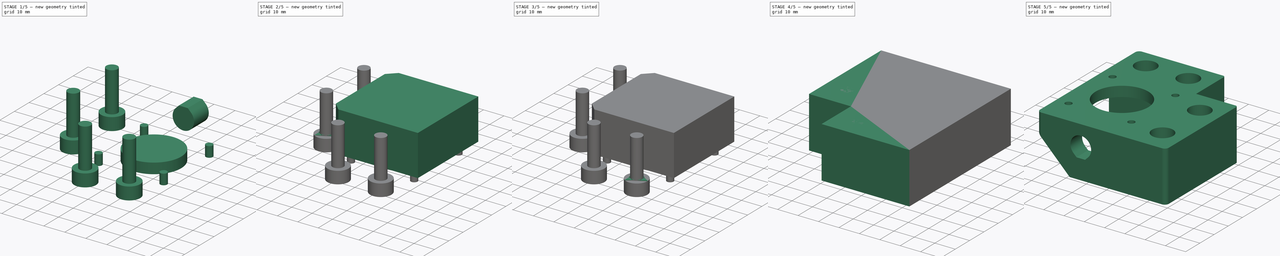
[diagram: build sequence overview — one tinted view per stage of 5, left to right]
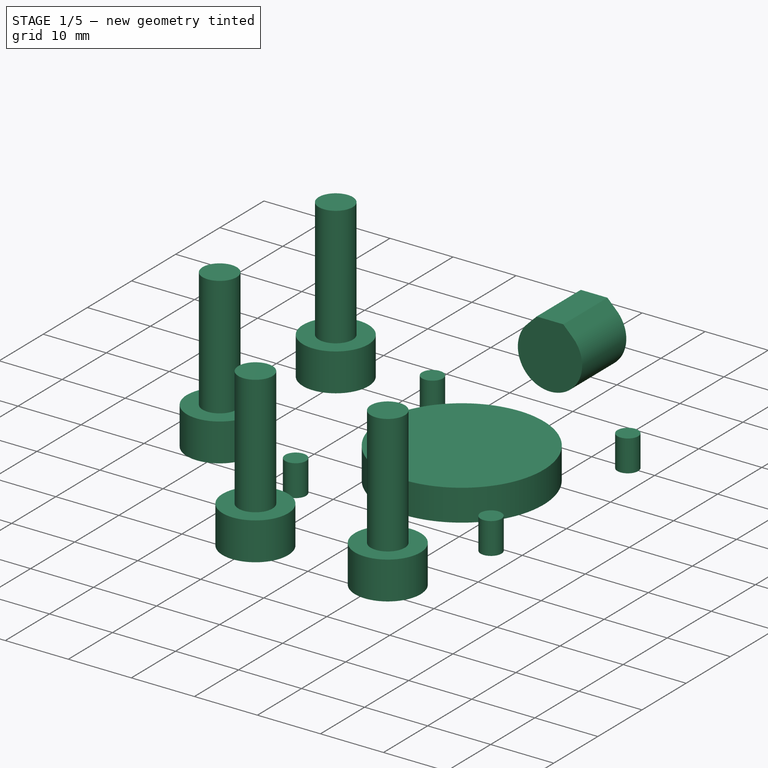
[diagram: stage 1 of 5 — iso view after this stage's code; geometry added in this stage tinted green]
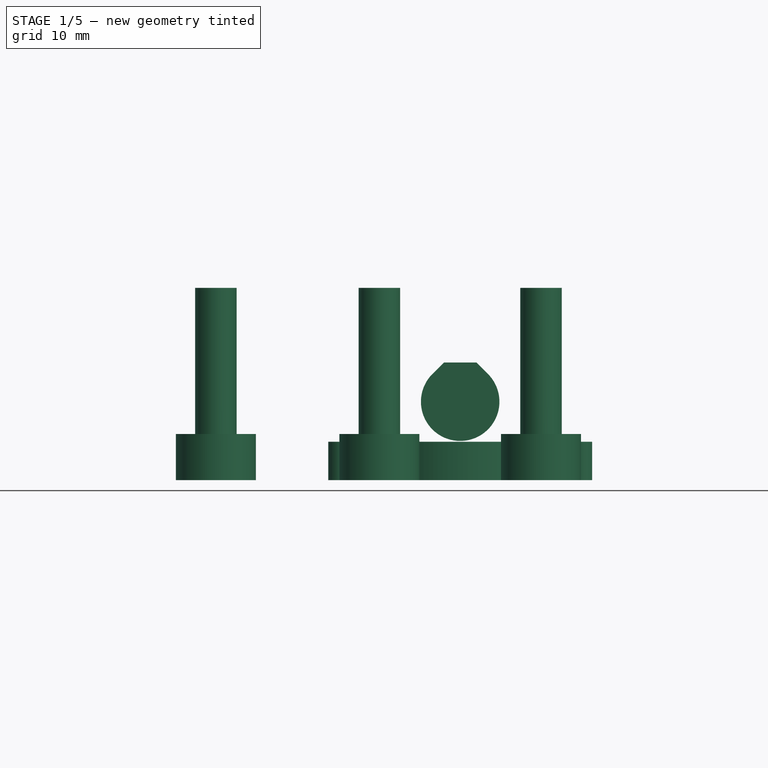
[diagram: stage 1 of 5 — front view after this stage's code; geometry added in this stage tinted green]
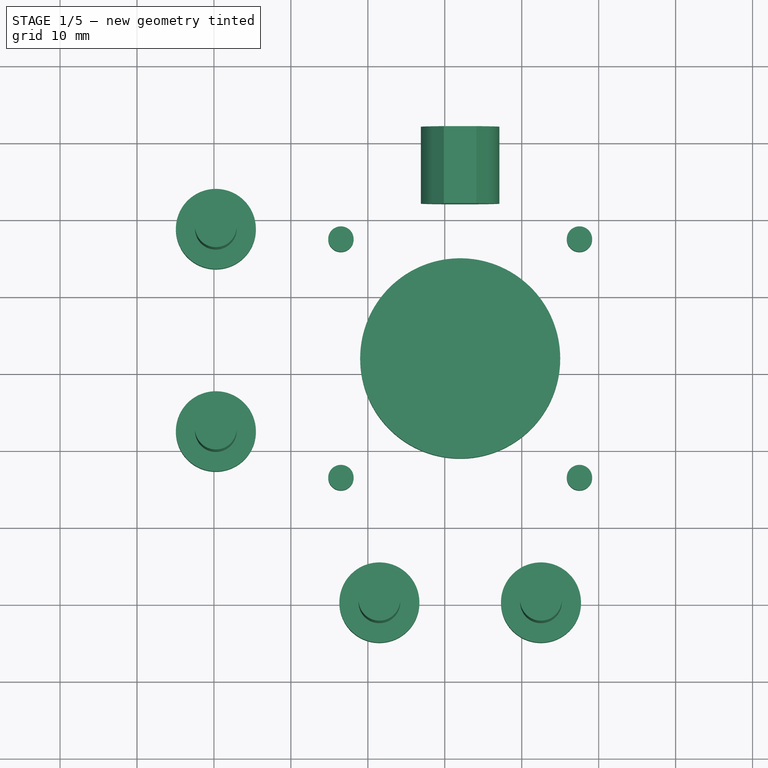
[diagram: stage 1 of 5 — top view after this stage's code; geometry added in this stage tinted green]
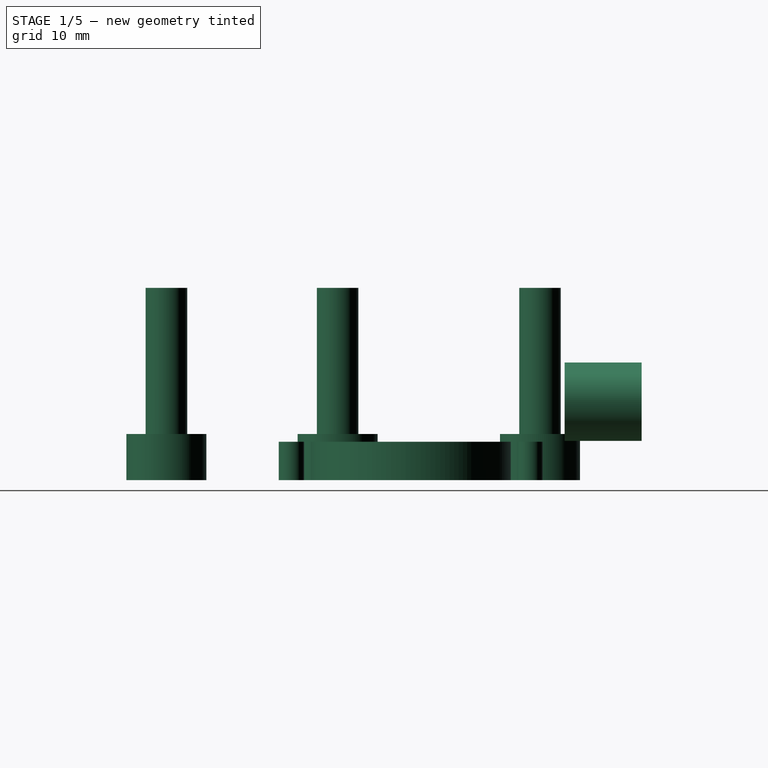
[diagram: stage 1 of 5 — right view after this stage's code; geometry added in this stage tinted green]
FCSTD DOCUMENT  (FreeCAD 0.17R13541 (Git))
Label: Motor XY_Der
License: All rights reserved
LicenseURL: http://en.wikipedia.org/wiki/All_rights_reserved
objects: Part::MultiFuse×5, Sketcher::SketchObject×4, Part::Extrusion×4, Part::Box×3, Part::Cut×3, Part::FeaturePython×3, Part::Chamfer×2, Part::Prism×2, Part::Fillet×1, Part::Mirroring×1
note: 28 computed .brp shape members not serialized (recipe doc carries the construction recipe); baked Part::Feature solids carry a one-line shape summary decoded from their .brp

FEATURE [Part::Box] Box010  label="hueco_motor001"
  AttacherType = Attacher::AttachEngine3D
  Height = 20
  Length = 43
  Placement = pos=(20.5,20.5,5) rot=(0,0,1;0rad)
  Width = 42.3
FEATURE [Sketcher::SketchObject] Sketch007
  MapMode = 5
  Placement = pos=(20.5,20.5,25) rot=(0,0,1;0rad)
  Support = -> [Box010]
  sketch-geometry (5):
    g0: Circle CenterX=21.5 CenterY=21.5 CenterZ=0 NormalX=0 NormalY=0 NormalZ=1 AngleXU=0 Radius=13
    g1: Circle CenterX=6 CenterY=37 CenterZ=0 NormalX=0 NormalY=0 NormalZ=1 AngleXU=0 Radius=1.65
    g2: Circle CenterX=37 CenterY=37 CenterZ=0 NormalX=0 NormalY=0 NormalZ=1 AngleXU=0 Radius=1.65
    g3: Circle CenterX=37 CenterY=6 CenterZ=0 NormalX=0 NormalY=0 NormalZ=1 AngleXU=0 Radius=1.65
    g4: Circle CenterX=6 CenterY=6 CenterZ=0 NormalX=0 NormalY=0 NormalZ=1 AngleXU=0 Radius=1.65
  constraints (15):
    c: DistanceY(g-1,g0) = 21.5
    c: DistanceX(g-1,g0) = 21.5
    c: Radius(g0) = 13
    c: DistanceX(g1,g0) = 15.5
    c: Radius(g1) = 1.65
    c: DistanceY(g2,g1) = 0
    c: DistanceY(g1,g0) = -15.5
    c: Equal(g2,g1)
    c: DistanceX(g2,g0) = -15.5
    c: DistanceX(g3,g2) = 0
    c: DistanceX(g4,g1) = 0
    c: DistanceY(g4,g3) = 0
    c: DistanceY(g3,g0) = 15.5
    c: Equal(g3,g2)
    c: Equal(g4,g3)
FEATURE [Sketcher::SketchObject] Sketch009  label="huecos_tornillos001"
  MapMode = 5
  sketch-geometry (4):
    g0: Circle CenterX=31.5 CenterY=10.25 CenterZ=0 NormalX=0 NormalY=0 NormalZ=1 AngleXU=0 Radius=2.7
    g1: Circle CenterX=52.5 CenterY=10.25 CenterZ=0 NormalX=0 NormalY=0 NormalZ=1 AngleXU=0 Radius=2.7
    g2: Circle CenterX=10.25 CenterY=32.5 CenterZ=0 NormalX=0 NormalY=0 NormalZ=1 AngleXU=0 Radius=2.7
    g3: Circle CenterX=10.25 CenterY=58.8 CenterZ=0 NormalX=0 NormalY=0 NormalZ=1 AngleXU=0 Radius=2.7
  constraints (12):
    c: DistanceY(g-1,g0) = 10.25
    c: Radius(g0) = 2.7
    c: DistanceX(g-1,g0) = 31.5
    c: DistanceY(g1,g0) = 0
    c: DistanceX(g1,g0) = -21
    c: Equal(g1,g0)
    c: DistanceX(g-1,g2) = 10.25
    c: Equal(g2,g0)
    c: DistanceY(g-1,g2) = 32.5
    c: DistanceX(g3,g2) = 0
    c: DistanceY(g3,g2) = -26.3
    c: Equal(g3,g2)
FEATURE [Sketcher::SketchObject] Sketch010  label="M10_repraphole001"
  MapMode = 5
  Placement = pos=(0,0,0) rot=(0.57735,0.57735,0.57735;2.0944rad)
  sketch-geometry (4):
    g0: ArcOfCircle CenterX=0 CenterY=0 CenterZ=0 NormalX=0 NormalY=0 NormalZ=1 AngleXU=0 Radius=5.1 StartAngle=2.3562 EndAngle=7.06858
    g1: LineSegment StartX=-3.60626 StartY=3.60623 StartZ=0 EndX=-2.11249 EndY=5.1 EndZ=0
    g2: LineSegment StartX=2.11249 StartY=5.1 StartZ=0 EndX=3.60626 EndY=3.60623 EndZ=0
    g3: LineSegment StartX=-2.11249 StartY=5.1 StartZ=0 EndX=2.11249 EndY=5.1 EndZ=0
  constraints (12):
    c: Coincident(g0,g-1)
    c: Radius(g0) = 5.1  'M5'
    c: Angle(g-1,g1) = 0.785398
    c: Horizontal(g3)
    c: Coincident(g3,g1)
    c: Coincident(g3,g2)
    c: Coincident(g0,g1)
    c: Coincident(g0,g2)
    c: DistanceY(g-1,g1) = 5.1  'M5radio'
    c: Angle(g2,g-1) = 0.785398
    c: Tangent(g2,g0)
    c: Tangent(g1,g0)
FEATURE [Sketcher::SketchObject] Sketch008  label="huecos_cabeza_tornillos001"
  MapMode = 5
  sketch-geometry (4):
    g0: Circle CenterX=31.5 CenterY=10.25 CenterZ=0 NormalX=0 NormalY=0 NormalZ=1 AngleXU=0 Radius=5.2
    g1: Circle CenterX=52.5 CenterY=10.25 CenterZ=0 NormalX=0 NormalY=0 NormalZ=1 AngleXU=0 Radius=5.2
    g2: Circle CenterX=10.25 CenterY=32.5 CenterZ=0 NormalX=0 NormalY=0 NormalZ=1 AngleXU=0 Radius=5.2
    g3: Circle CenterX=10.25 CenterY=58.8 CenterZ=0 NormalX=0 NormalY=0 NormalZ=1 AngleXU=0 Radius=5.2
  constraints (12):
    c: DistanceY(g-1,g0) = 10.25
    c: Radius(g0) = 5.2
    c: DistanceX(g-1,g0) = 31.5
    c: DistanceY(g1,g0) = 0
    c: DistanceX(g1,g0) = -21
    c: Equal(g1,g0)
    c: DistanceX(g-1,g2) = 10.25
    c: Equal(g2,g0)
    c: DistanceY(g-1,g2) = 32.5
    c: DistanceX(g3,g2) = 0
    c: DistanceY(g3,g2) = -26.3
    c: Equal(g3,g2)
FEATURE [Part::Extrusion] Extrude009  label="huecos_cabeza_tornillos_extr001"
  Base = -> Sketch008
  Dir = (0,0,6)
  DirMode = 0
  FaceMakerClass = Part::FaceMakerExtrusion
  LengthFwd = 0
  LengthRev = 0
  Solid = true
  Symmetric = false
FEATURE [Part::Extrusion] Extrude010  label="huecos_tornillos_extr001"
  Base = -> Sketch009
  Dir = (0,0,25)
  DirMode = 0
  FaceMakerClass = Part::FaceMakerExtrusion
  LengthFwd = 0
  LengthRev = 0
  Solid = true
  Symmetric = false
FEATURE [Part::Extrusion] Extrude008  label="M10_repraphole_extr001"
  Base = -> Sketch010
  Dir = (10,0,0)
  DirMode = 0
  FaceMakerClass = Part::FaceMakerExtrusion
  LengthFwd = 0
  LengthRev = 0
  Placement = pos=(42,62,10.2) rot=(0,0,1;1.5708rad)
  Solid = true
  Symmetric = false
FEATURE [Part::Extrusion] Extrude007  label="agujero_motor001"
  Base = -> Sketch007
  Dir = (0,0,5)
  DirMode = 0
  FaceMakerClass = Part::FaceMakerExtrusion
  LengthFwd = 0
  LengthRev = 0
  Placement = pos=(0,0,-25) rot=(0,0,1;0rad)
  Solid = true
  Symmetric = false
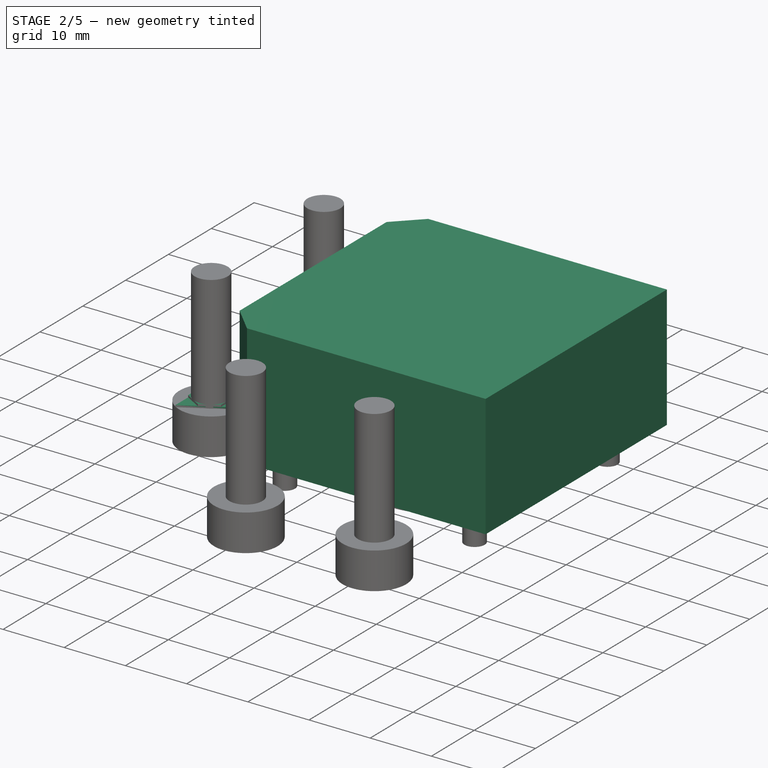
[diagram: stage 2 of 5 — iso view after this stage's code; geometry added in this stage tinted green]
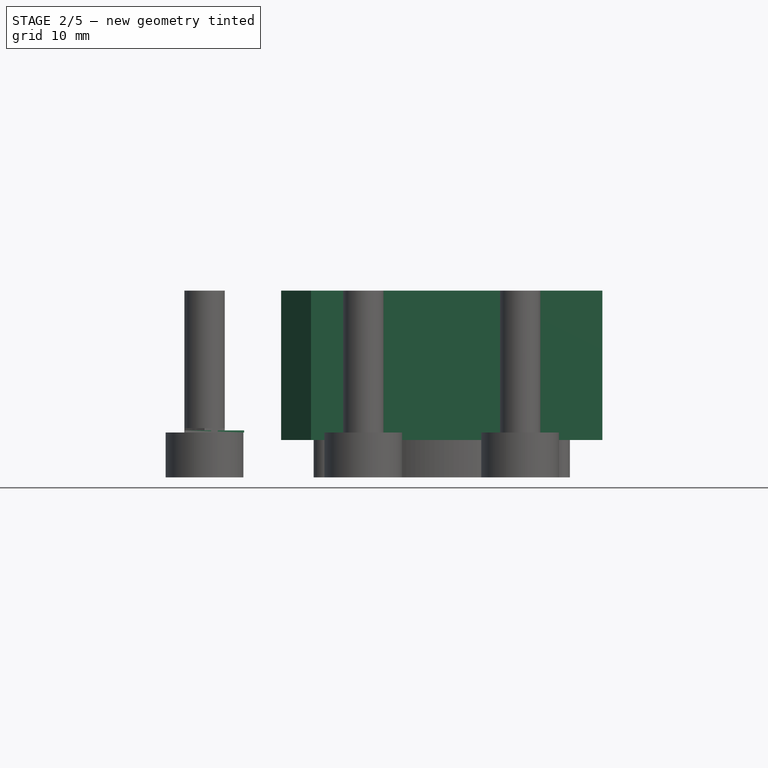
[diagram: stage 2 of 5 — front view after this stage's code; geometry added in this stage tinted green]
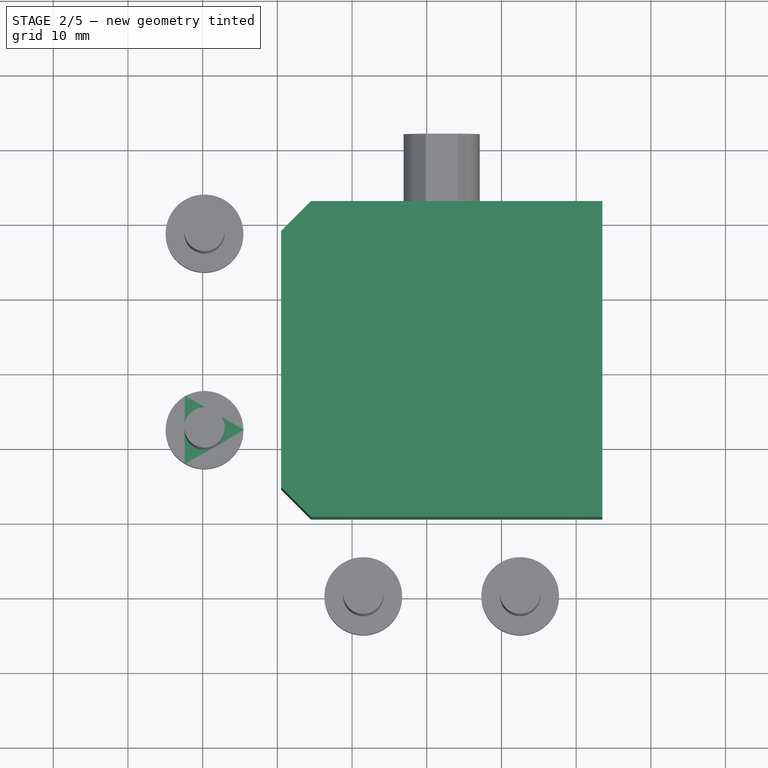
[diagram: stage 2 of 5 — top view after this stage's code; geometry added in this stage tinted green]
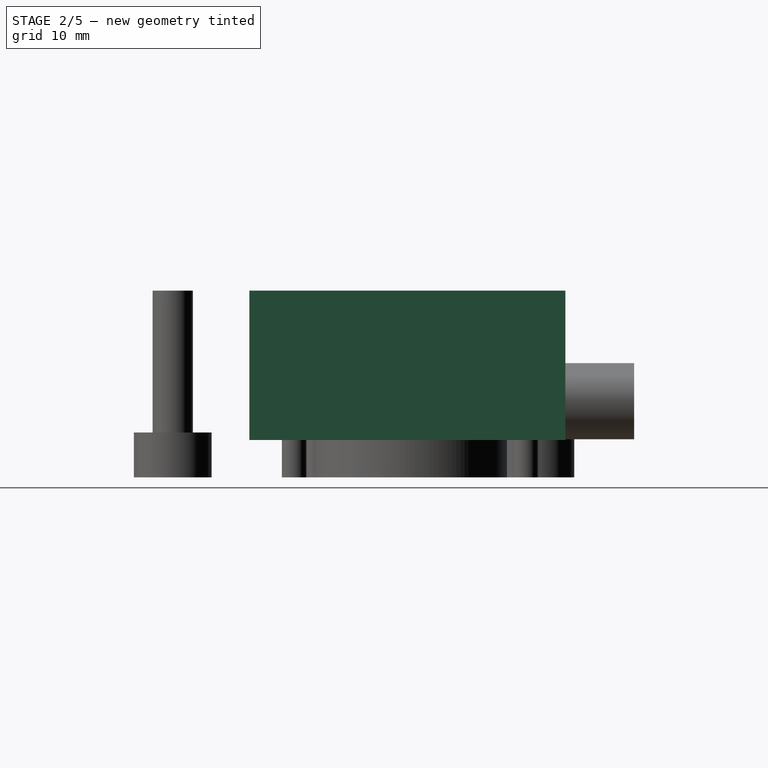
[diagram: stage 2 of 5 — right view after this stage's code; geometry added in this stage tinted green]
FEATURE [Part::Chamfer] Chamfer003  label="hueco_motor_chaflan001"
  Base = -> Box010
  Edges = 2 edges r=4: [Edge1,Edge3]
FEATURE [Part::Prism] Prism002  label="triangulo_soporte001"
  AttacherType = Attacher::AttachEngine3D
  Circumradius = 5.3
  Height = 0.3
  Placement = pos=(10.25,32.5,6) rot=(0,0,1;0rad)
  Polygon = 3
FEATURE [Part::Prism] Prism003  label="hexagono_soporte001"
  AttacherType = Attacher::AttachEngine3D
  Circumradius = 3.1
  Height = 0.3
  Placement = pos=(10.25,32.5,6.3) rot=(0,0,1;0.523599rad)
  Polygon = 6
FEATURE [Part::MultiFuse] Fusion015  label="huecos_tornillos_todo001"
  Shapes = -> [Extrude009,Extrude010]
FEATURE [Part::MultiFuse] Fusion011  label="hueco_motor_total001"
  Shapes = -> [Chamfer003,Extrude007]
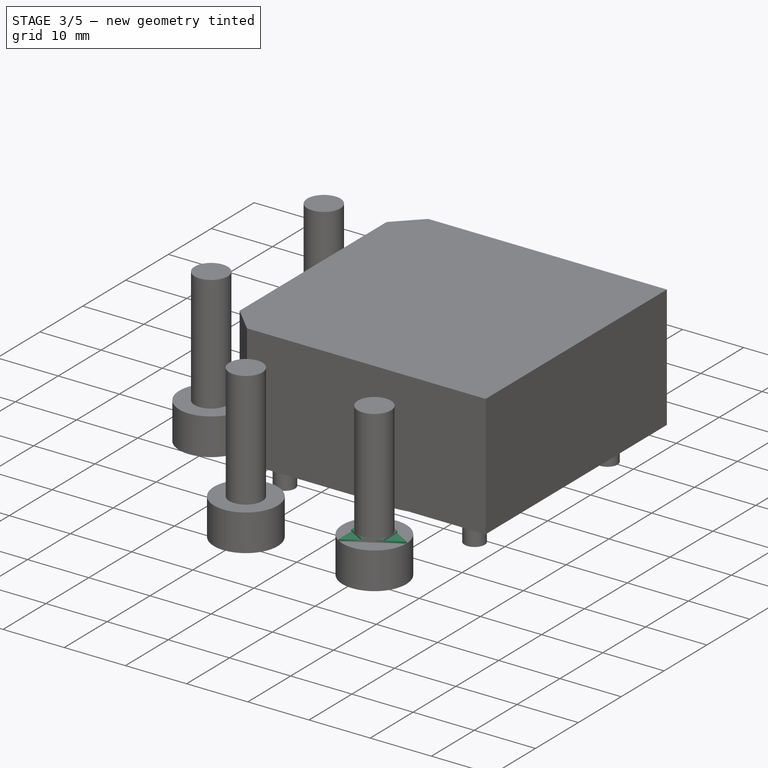
[diagram: stage 3 of 5 — iso view after this stage's code; geometry added in this stage tinted green]
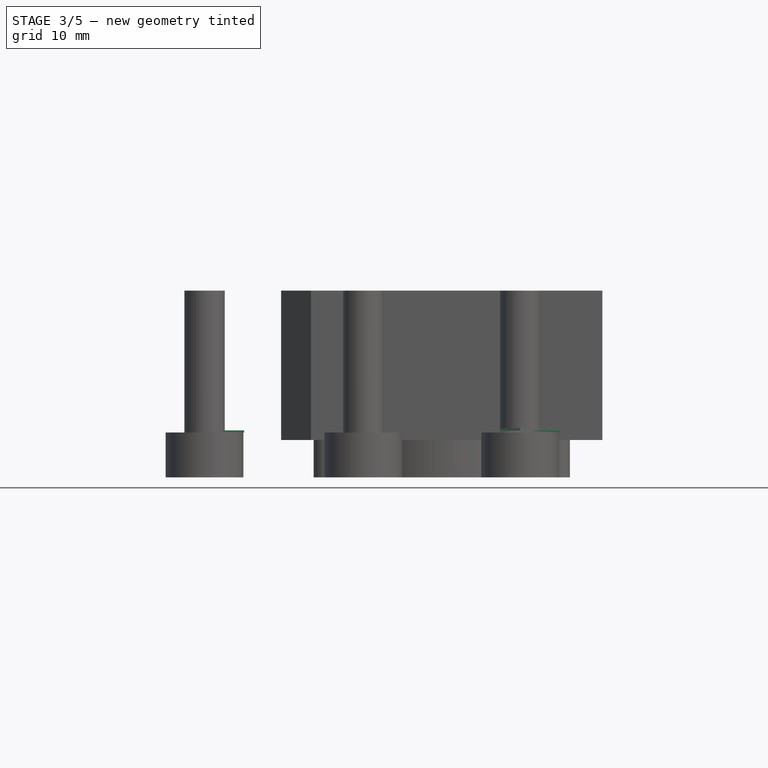
[diagram: stage 3 of 5 — front view after this stage's code; geometry added in this stage tinted green]
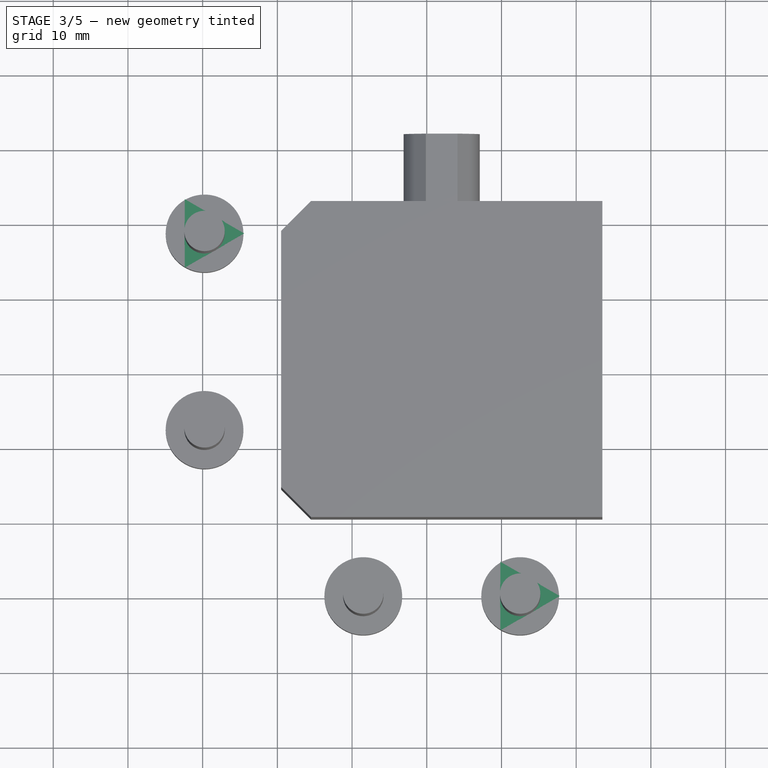
[diagram: stage 3 of 5 — top view after this stage's code; geometry added in this stage tinted green]
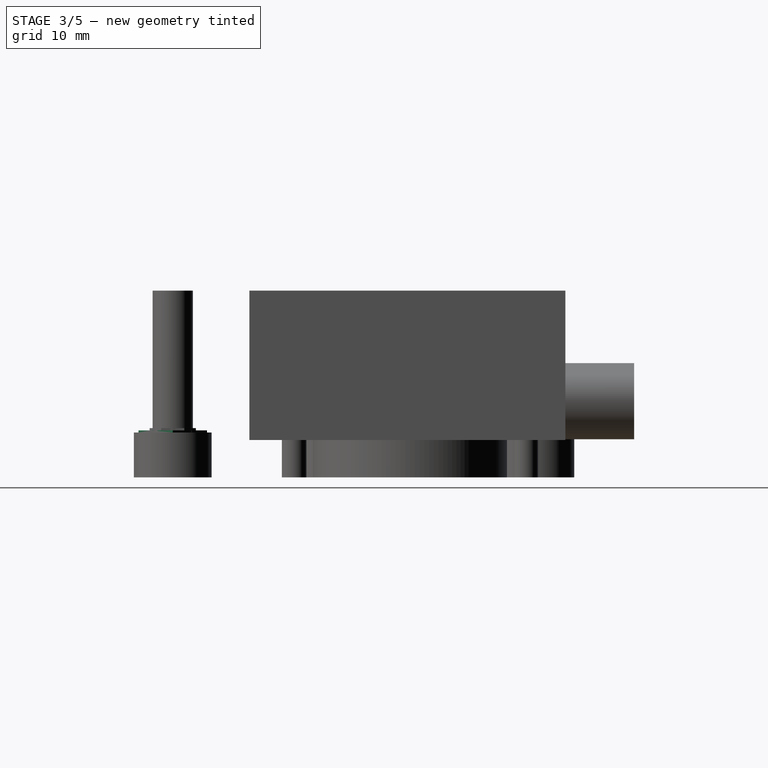
[diagram: stage 3 of 5 — right view after this stage's code; geometry added in this stage tinted green]
FEATURE [Part::MultiFuse] Fusion012  label="soporte_circulos001"
  Shapes = -> [Prism002,Prism003]
FEATURE [Part::FeaturePython] Clone008  label="soporte_circulos_005"  # Draft clone (typed FeaturePython)
  Objects = -> [Fusion012]
  Placement = pos=(21.25,-22.25,0) rot=(0,0,1;0rad)
  Scale = (1,1,1)
FEATURE [Part::FeaturePython] Clone010  label="soporte_circulos_007"  # Draft clone (typed FeaturePython)
  Objects = -> [Clone008]
  Placement = pos=(42.25,-22.25,0) rot=(0,0,1;0rad)
  Scale = (1,1,1)
FEATURE [Part::FeaturePython] Clone009  label="soporte_circulos_006"  # Draft clone (typed FeaturePython)
  Objects = -> [Fusion012]
  Placement = pos=(0,26.3,0) rot=(0,0,1;0rad)
  Scale = (1,1,1)
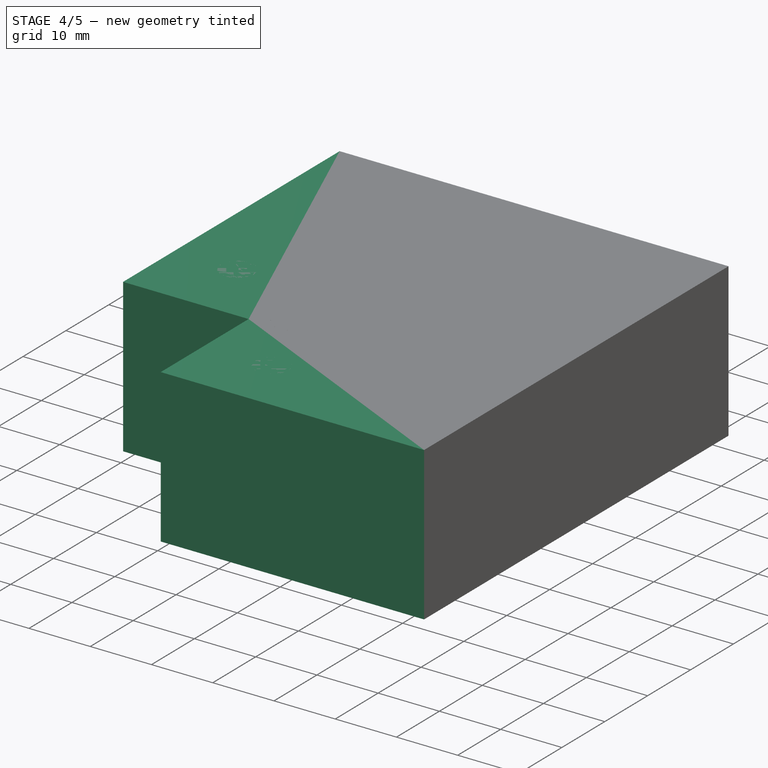
[diagram: stage 4 of 5 — iso view after this stage's code; geometry added in this stage tinted green]
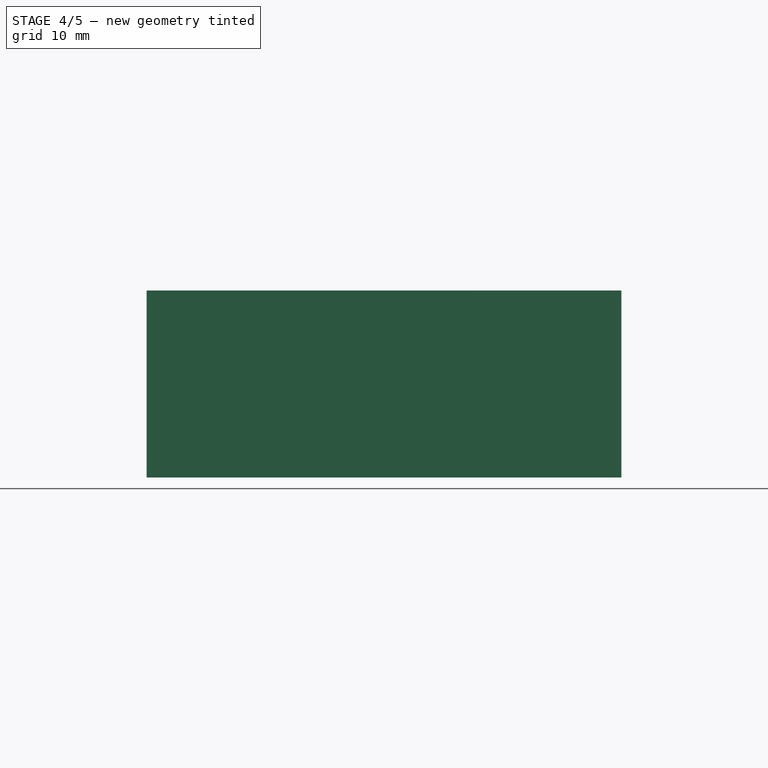
[diagram: stage 4 of 5 — front view after this stage's code; geometry added in this stage tinted green]
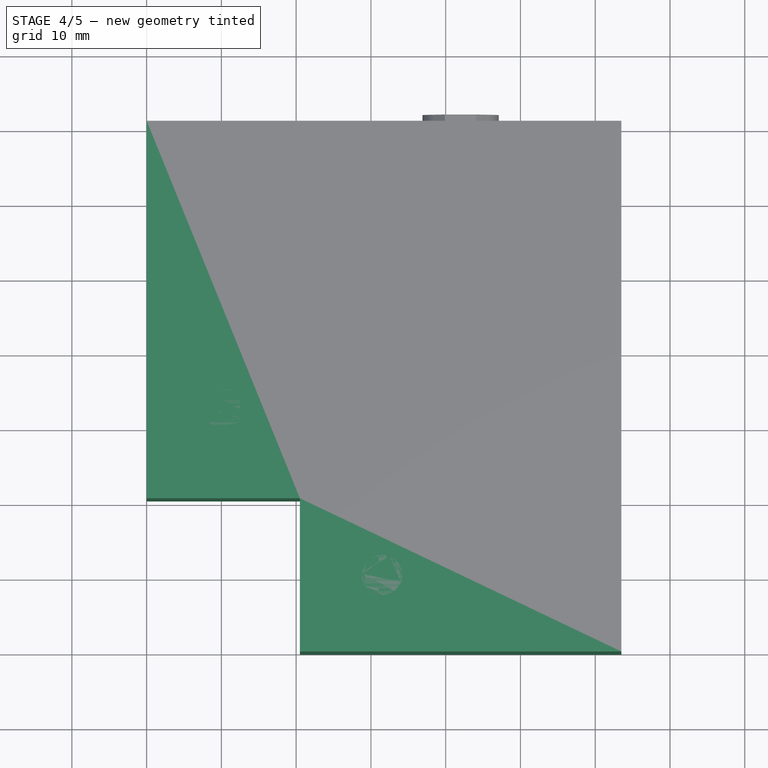
[diagram: stage 4 of 5 — top view after this stage's code; geometry added in this stage tinted green]
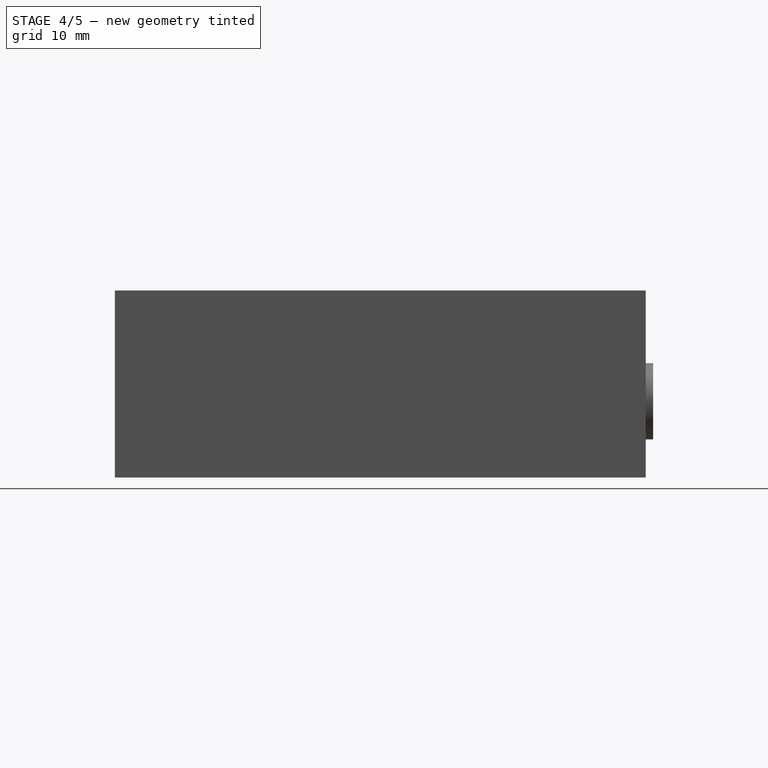
[diagram: stage 4 of 5 — right view after this stage's code; geometry added in this stage tinted green]
FEATURE [Part::Box] Box011  label="hueco_columna_z001"
  AttacherType = Attacher::AttachEngine3D
  Height = 25
  Length = 20.5
  Width = 20.5
FEATURE [Part::Box] Box012  label="cubo_base001"
  AttacherType = Attacher::AttachEngine3D
  Height = 25
  Length = 63.5
  Width = 71
FEATURE [Part::Cut] Cut008  label="cubo_base_sin_columna001"
  Base = -> Box012
  Tool = -> Box011
FEATURE [Part::MultiFuse] Fusion013  label="huecos_soporte_taladros001"
  Shapes = -> [Fusion012,Clone009,Clone008,Clone010]
FEATURE [Part::MultiFuse] Fusion014  label="huecos_003"
  Shapes = -> [Fusion015,Extrude008,Fusion013]
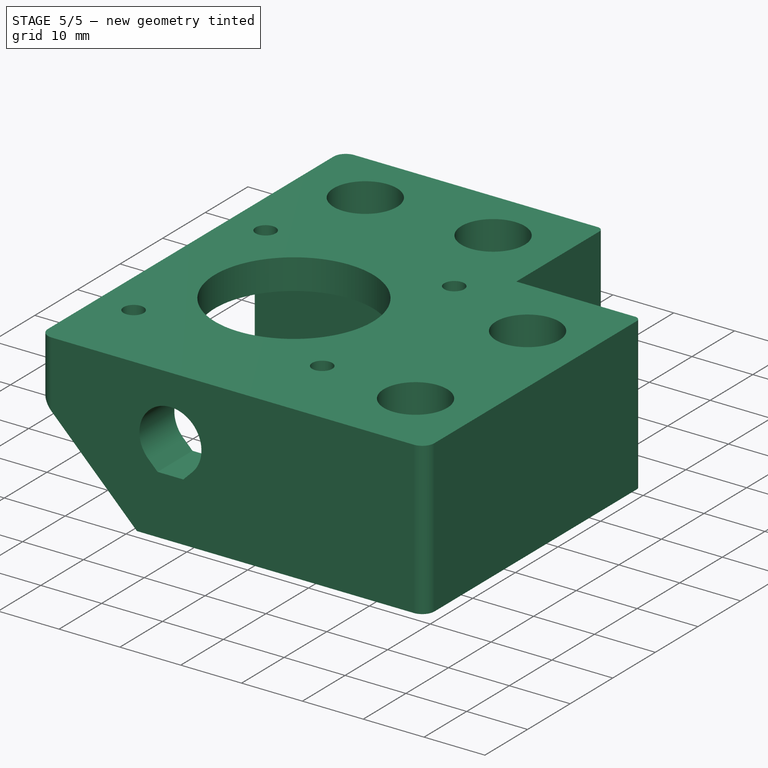
[diagram: stage 5 of 5 — iso view after this stage's code; geometry added in this stage tinted green]
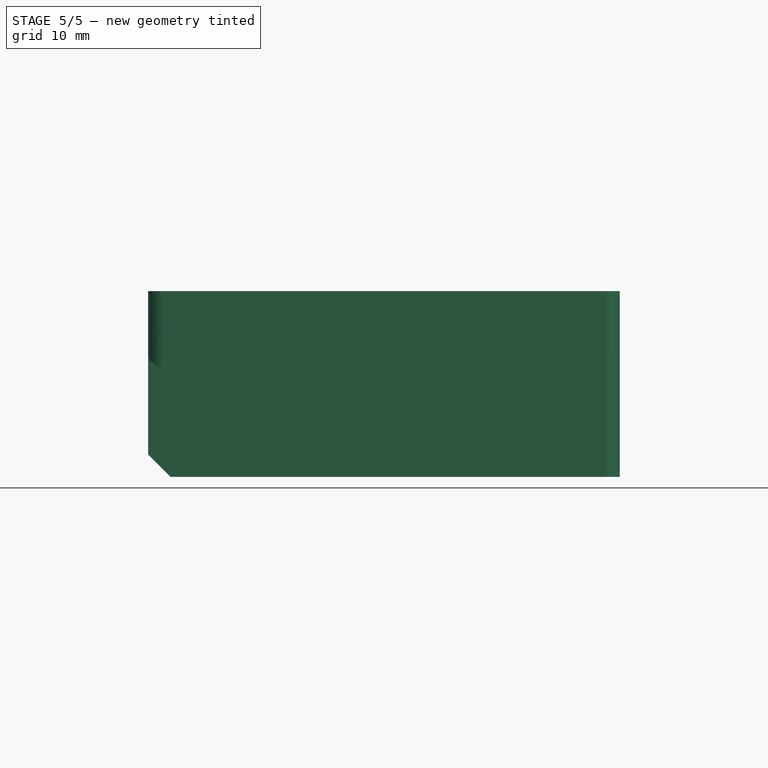
[diagram: stage 5 of 5 — front view after this stage's code; geometry added in this stage tinted green]
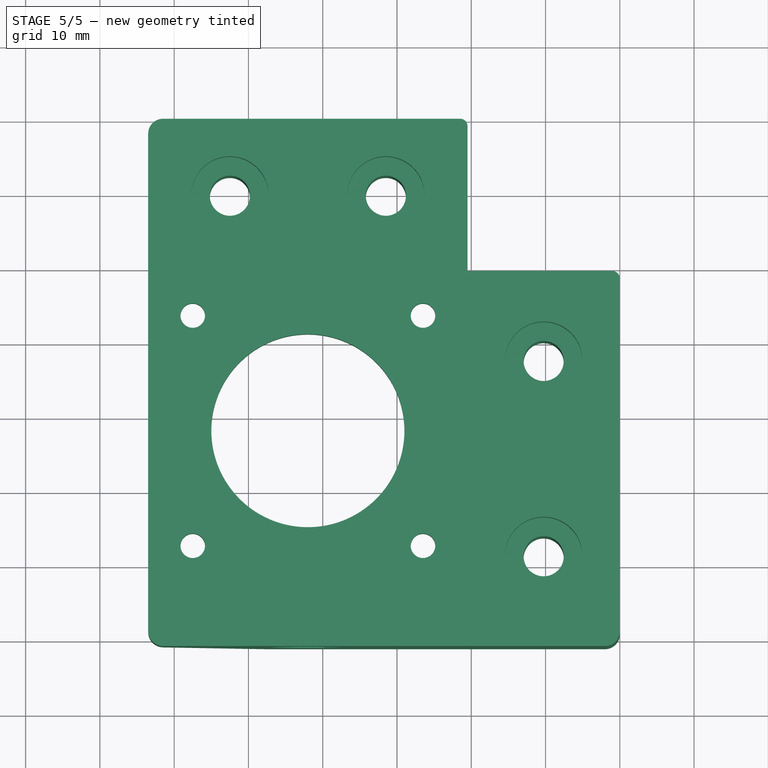
[diagram: stage 5 of 5 — top view after this stage's code; geometry added in this stage tinted green]
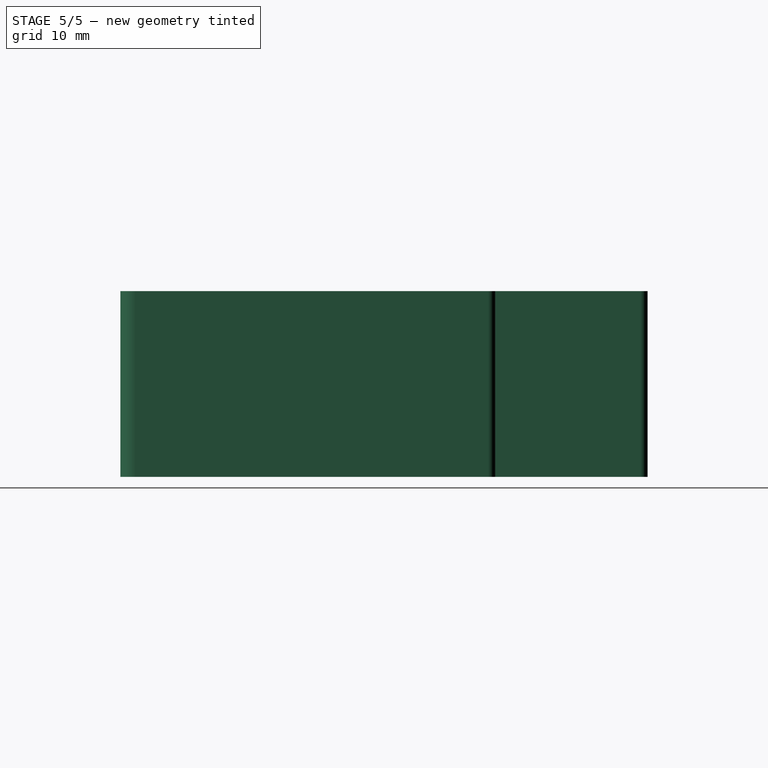
[diagram: stage 5 of 5 — right view after this stage's code; geometry added in this stage tinted green]
FEATURE [Part::Cut] Cut007  label="base_sin_motor_columna001"
  Base = -> Cut008
  Tool = -> Fusion011
FEATURE [Part::Cut] Cut009  label="YmotorLeft_casi001"
  Base = -> Cut007
  Tool = -> Fusion014
FEATURE [Part::Chamfer] Chamfer004  label="YmotorLeft_chaflan001"
  Base = -> Cut009
  Edges = 2 edges: [Edge10 r=16,Edge13 r=3]
FEATURE [Part::Fillet] Fillet002  label="YmotorLeft001"
  Base = -> Chamfer004
  Edges = 5 edges: [Edge17 r=2,Edge20 r=2,Edge27 r=1,Edge40 r=1,Edge44 r=2]
FEATURE [Part::Mirroring] Part__Mirroring  label="Motor XY_Der"
  Base = (0,0,0)
  Normal = (0,1,0)
  Placement = pos=(710,630,635) rot=(0,1,0;3.14159rad)
  Source = -> Fillet002
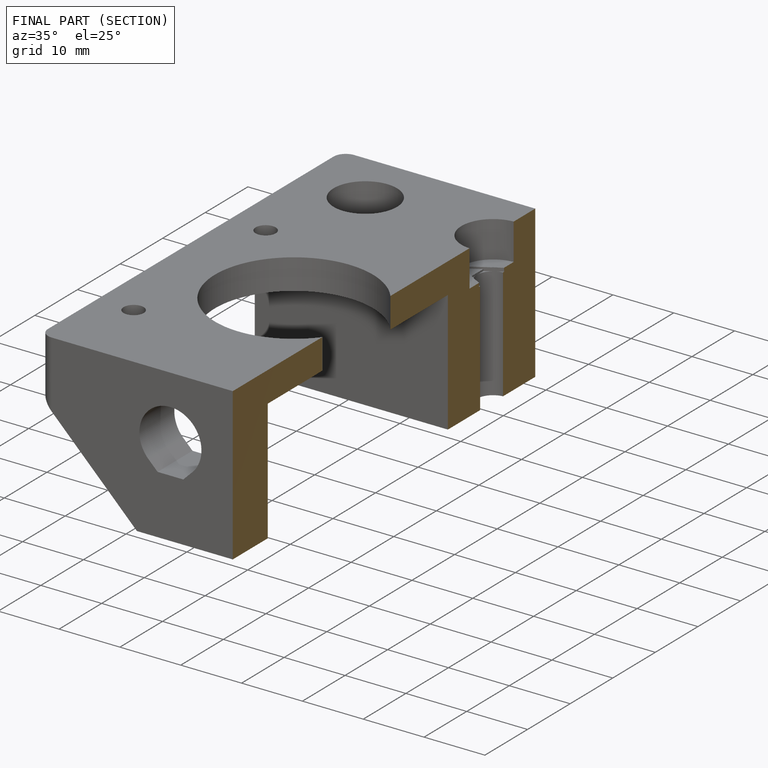
[diagram: finished part — half-section view (interior)]
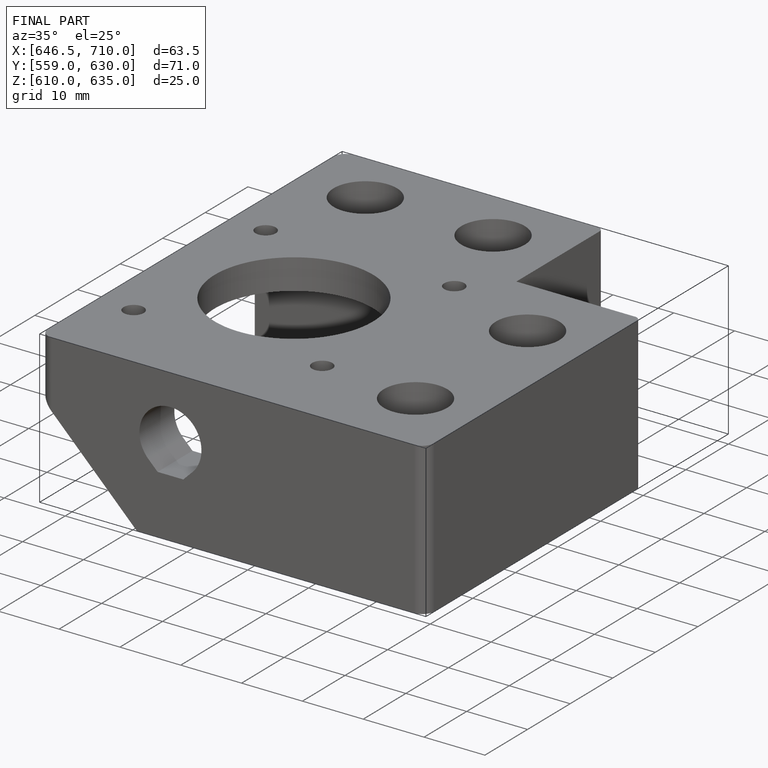
[diagram: finished part — iso view with bounding-box wireframe]
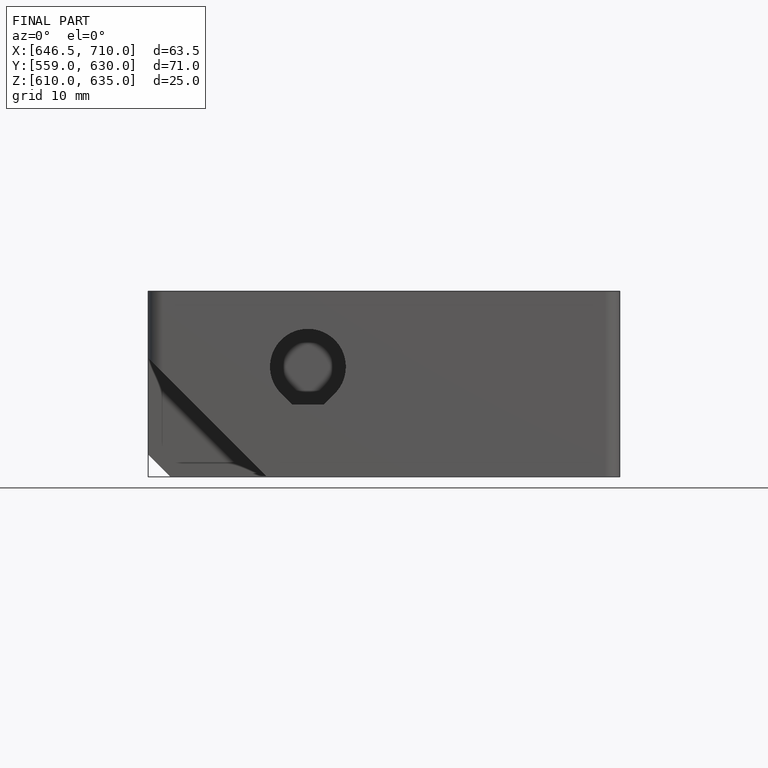
[diagram: finished part — front view with bounding-box wireframe]
